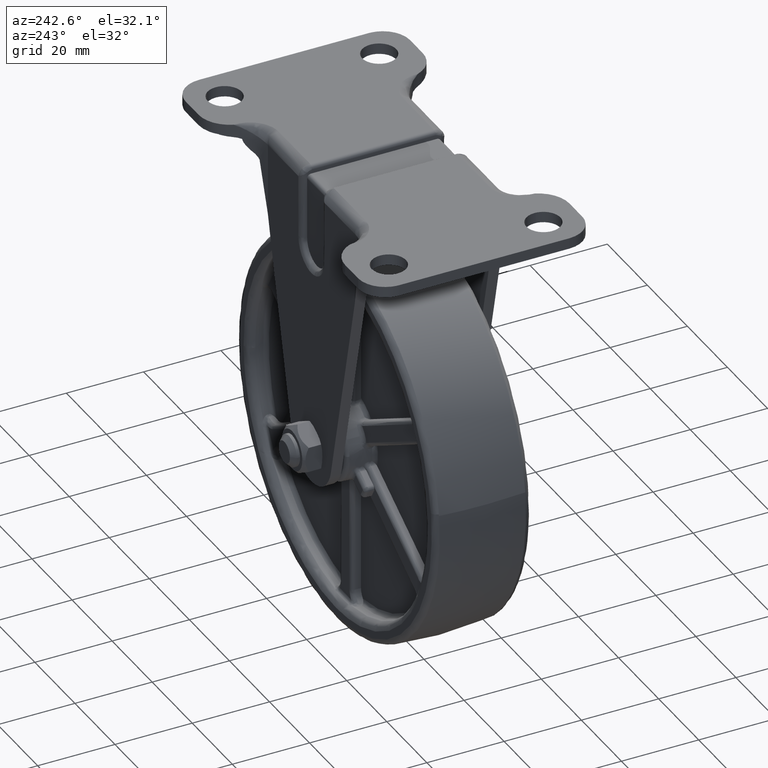
[diagram: clean part render]
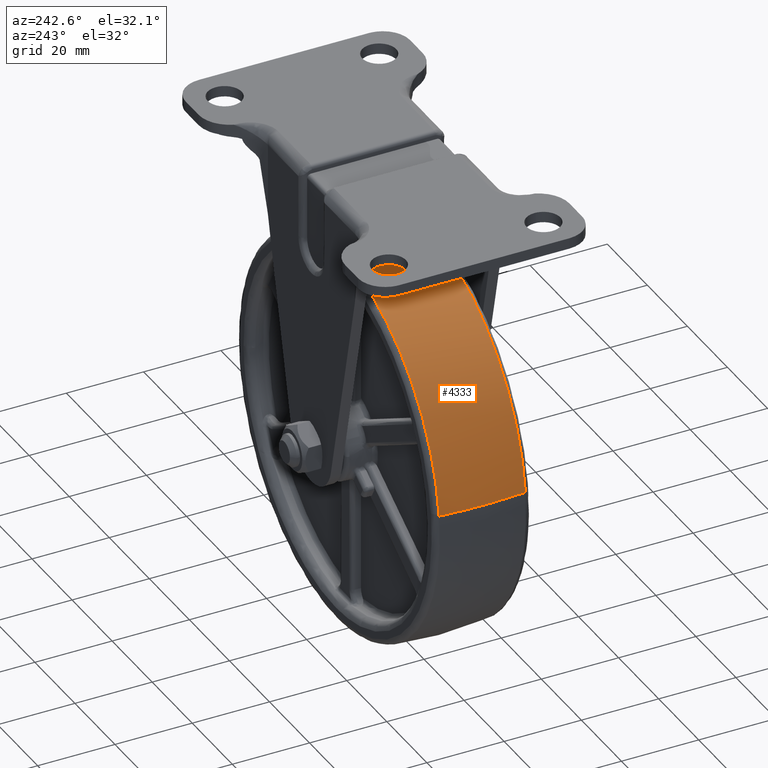
[diagram: same view with one face highlighted and labeled with its STEP entity id]
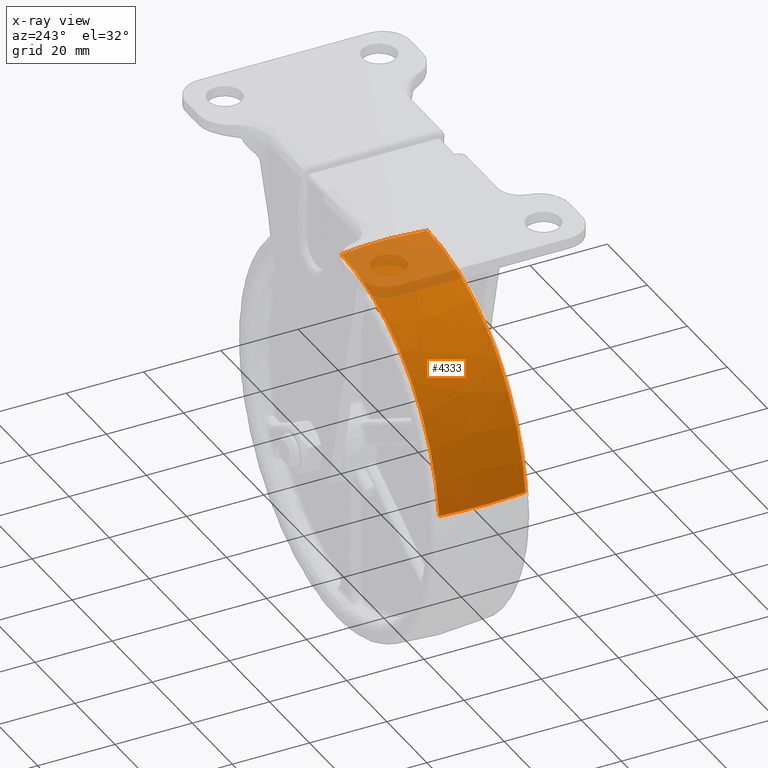
[diagram: x-ray of the same camera — body ghosted, the highlighted face saturated]
A machine part, auxiliary view. The second image highlights one B-rep face of the part: STEP entity #4333.
The next image is the same camera in x-ray: the body ghosted, the highlighted face saturated — about 19% of this face is hidden behind the body in this view.
In plain terms, the highlighted face is a freeform B-spline surface patch.
Its self-contained STEP definition (entity closure, byte-faithful):
#3361=CARTESIAN_POINT('',(0.0,-11.167501450984091,49.374494168904697));
#3362=VERTEX_POINT('',#3361);
#3376=CARTESIAN_POINT('',(-49.044247251732713,-11.167514821191080,5.700959570039594));
#3377=VERTEX_POINT('',#3376);
#3378=CARTESIAN_POINT('',(0.0,-11.167501450984091,49.374494168904697));
#3379=CARTESIAN_POINT('',(-43.967599990507665,-11.167508136087587,49.374493513738379));
#3380=CARTESIAN_POINT('',(-49.044247251732713,-11.167514821191080,5.700959570039594));
#3388=(BOUNDED_CURVE()B_SPLINE_CURVE(2,(#3378,#3379,#3380),.UNSPECIFIED.,.F.,.U.)B_SPLINE_CURVE_WITH_KNOTS((3,3),(0.500000000000000,0.730000145986059),.UNSPECIFIED.)CURVE()GEOMETRIC_REPRESENTATION_ITEM()RATIONAL_B_SPLINE_CURVE((1.0,0.730538067658317,0.956886405526814))REPRESENTATION_ITEM(''));
#3389=EDGE_CURVE('',#3362,#3377,#3388,.T.);
#3450=CARTESIAN_POINT('',(0.0,11.167485628169199,49.374495070906320));
#3451=VERTEX_POINT('',#3450);
#3514=CARTESIAN_POINT('',(-48.985144623568317,11.167498976612981,6.188278873419170));
#3515=VERTEX_POINT('',#3514);
#3529=CARTESIAN_POINT('',(0.0,11.167485628169199,49.374495070906320));
#3530=CARTESIAN_POINT('',(-43.529456473130857,11.167492296618834,49.374493279778562));
#3531=CARTESIAN_POINT('',(-48.985144623568324,11.167498976612981,6.188278873419170));
#3539=(BOUNDED_CURVE()B_SPLINE_CURVE(2,(#3529,#3530,#3531),.UNSPECIFIED.,.F.,.U.)B_SPLINE_CURVE_WITH_KNOTS((3,3),(0.500000000000000,0.728321256474968),.UNSPECIFIED.)CURVE()GEOMETRIC_REPRESENTATION_ITEM()RATIONAL_B_SPLINE_CURVE((1.0,0.732505009070059,0.953608357579193))REPRESENTATION_ITEM(''));
#3540=EDGE_CURVE('',#3451,#3515,#3539,.T.);
#3583=CARTESIAN_POINT('',(-49.044248125281300,11.167499099310250,5.700959768865777));
#3584=VERTEX_POINT('',#3583);
#3600=CARTESIAN_POINT('',(-48.985144623568324,11.167498976612972,6.188278873419170));
#3601=CARTESIAN_POINT('',(-49.015907853491619,11.167499061709082,5.944766252845918));
#3602=CARTESIAN_POINT('',(-49.044248125281300,11.167499099310259,5.700959768865777));
#3610=(BOUNDED_CURVE()B_SPLINE_CURVE(2,(#3600,#3601,#3602),.UNSPECIFIED.,.F.,.U.)B_SPLINE_CURVE_WITH_KNOTS((3,3),(0.728321256474968,0.730000145654996),.UNSPECIFIED.)CURVE()GEOMETRIC_REPRESENTATION_ITEM()RATIONAL_B_SPLINE_CURVE((0.953608357579192,0.955234172123186,0.956886404875201))REPRESENTATION_ITEM(''));
#3611=EDGE_CURVE('',#3515,#3584,#3610,.T.);
#4254=CARTESIAN_POINT('',(-49.044247251732720,-11.167514821191075,5.700959570039594));
#4255=CARTESIAN_POINT('',(-49.665586642380653,-5.601276079178630,5.773185138705915));
#4256=CARTESIAN_POINT('',(-49.665586424053942,-0.000000048614962,5.773185137724423));
#4257=CARTESIAN_POINT('',(-49.665586205727536,5.601268095782933,5.773185136742934));
#4258=CARTESIAN_POINT('',(-49.044248125281307,11.167499099310255,5.700959768865777));
#4266=(BOUNDED_CURVE()B_SPLINE_CURVE(2,(#4254,#4255,#4256,#4257,#4258),.UNSPECIFIED.,.F.,.U.)B_SPLINE_CURVE_WITH_KNOTS((3,2,3),(0.444815480394185,0.500000000000000,0.555184443059112),.UNSPECIFIED.)CURVE()GEOMETRIC_REPRESENTATION_ITEM()RATIONAL_B_SPLINE_CURVE((0.931711096272141,0.942736980498662,0.956886118190660,0.942737000124996,0.931711126860258))REPRESENTATION_ITEM(''));
#4267=EDGE_CURVE('',#3377,#3584,#4266,.T.);
#4272=CARTESIAN_POINT('',(0.0,-11.167501450984100,49.374494168904697));
#4273=CARTESIAN_POINT('',(0.0,-5.601269306657856,50.000015999999896));
#4274=CARTESIAN_POINT('',(0.0,0.0,50.000015999999903));
#4275=CARTESIAN_POINT('',(0.0,5.601261369548253,50.000015999999896));
#4276=CARTESIAN_POINT('',(0.0,11.167485628169198,49.374495070906320));
#4284=(BOUNDED_CURVE()B_SPLINE_CURVE(2,(#4272,#4273,#4274,#4275,#4276),.UNSPECIFIED.,.F.,.U.)B_SPLINE_CURVE_WITH_KNOTS((3,2,3),(0.444815545896164,0.500000000000000,0.555184377062646),.UNSPECIFIED.)CURVE()GEOMETRIC_REPRESENTATION_ITEM()RATIONAL_B_SPLINE_CURVE((0.973690708575139,0.985213370088125,1.0,0.985213390731249,0.973690740747958))REPRESENTATION_ITEM(''));
#4285=EDGE_CURVE('',#3362,#3451,#4284,.T.);
#4293=CARTESIAN_POINT('',(0.319474034786904,-12.293386072552332,49.241502581324212));
#4294=CARTESIAN_POINT('',(0.324395196984233,-6.170093529960964,50.000015999999896));
#4295=CARTESIAN_POINT('',(0.324395196984233,0.0,50.000015999999917));
#4296=CARTESIAN_POINT('',(0.324395196984233,6.170084291192711,50.000015999999903));
#4297=CARTESIAN_POINT('',(0.319474049468371,12.293367804715867,49.241504844222590));
#4298=CARTESIAN_POINT('',(0.159951943044109,-12.293386072552337,49.241502581324212));
#4299=CARTESIAN_POINT('',(0.162415834846844,-6.170093529960965,50.000015999999910));
#4300=CARTESIAN_POINT('',(0.162415834846844,0.0,50.000015999999889));
#4301=CARTESIAN_POINT('',(0.162415834846844,6.170084291192712,50.000015999999910));
#4302=CARTESIAN_POINT('',(0.159951950394719,12.293367804715869,49.241504844222590));
#4303=CARTESIAN_POINT('',(-43.849135137050624,-12.293386072552336,49.241502581324248));
#4304=CARTESIAN_POINT('',(-44.524585041347180,-6.170093529960965,50.000015999999910));
#4305=CARTESIAN_POINT('',(-44.524585041347194,0.0,50.000015999999917));
#4306=CARTESIAN_POINT('',(-44.524585041347187,6.170084291192712,50.000015999999910));
#4307=CARTESIAN_POINT('',(-43.849137152142831,12.293367804715865,49.241504844222597));
#4308=CARTESIAN_POINT('',(-48.931448215640884,-12.293386072552337,5.519557158616295));
#4309=CARTESIAN_POINT('',(-49.685185818698429,-6.170093529960964,5.604579897051068));
#4310=CARTESIAN_POINT('',(-49.685185818698429,0.0,5.604579897051070));
#4311=CARTESIAN_POINT('',(-49.685185818698429,6.170084291192711,5.604579897051068));
#4312=CARTESIAN_POINT('',(-48.931450464291395,12.293367804715864,5.519557412267467));
#4313=CARTESIAN_POINT('',(-48.950709132174111,-12.293386072552339,5.353860018665422));
#4314=CARTESIAN_POINT('',(-49.704743429435290,-6.170093529960964,5.436330366569065));
#4315=CARTESIAN_POINT('',(-49.704743429435283,0.0,5.436330366569066));
#4316=CARTESIAN_POINT('',(-49.704743429435290,6.170084291192711,5.436330366569067));
#4317=CARTESIAN_POINT('',(-48.950711381709766,12.293367804715867,5.353860264701961));
#4325=(BOUNDED_SURFACE()B_SPLINE_SURFACE(2,2,((#4293,#4298,#4303,#4308,#4313),(#4294,#4299,#4304,#4309,#4314),(#4295,#4300,#4305,#4310,#4315),(#4296,#4301,#4306,#4311,#4316),(#4297,#4302,#4307,#4312,#4317)),.UNSPECIFIED.,.F.,.F.,.U.)B_SPLINE_SURFACE_WITH_KNOTS((3,2,3),(3,1,1,3),(0.0,12.496629130534661,24.993239853609658),(0.0,0.380658722189786,76.512356539367602,76.893063584013433),.UNSPECIFIED.)GEOMETRIC_REPRESENTATION_ITEM()RATIONAL_B_SPLINE_SURFACE(((0.974038640441695,0.972729835530808,0.709660208737079,0.930638834805886,0.931738370493105),(0.986386963933678,0.985061566717562,0.718656888604830,0.942436959550890,0.943550434543793),(1.002694619263187,1.001347309631594,0.730538238691624,0.958018001949155,0.959149885707650),(0.986386987954756,0.985061590706363,0.718656906105988,0.942436982501672,0.943550457521691),(0.974038676819716,0.972729871859948,0.709660235241196,0.930638869563028,0.931738405291312)))REPRESENTATION_ITEM('')SURFACE());
#4326=ORIENTED_EDGE('',*,*,#3389,.F.);
#4327=ORIENTED_EDGE('',*,*,#4285,.T.);
#4328=ORIENTED_EDGE('',*,*,#3540,.T.);
#4329=ORIENTED_EDGE('',*,*,#3611,.T.);
#4330=ORIENTED_EDGE('',*,*,#4267,.F.);
#4331=EDGE_LOOP('',(#4326,#4327,#4328,#4329,#4330));
#4332=FACE_OUTER_BOUND('',#4331,.T.);
#4333=ADVANCED_FACE('',(#4332),#4325,.T.);